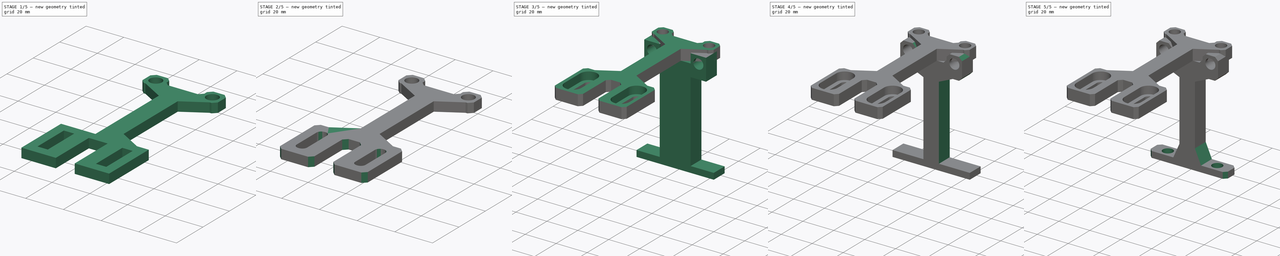
[diagram: build sequence overview — one tinted view per stage of 5, left to right]
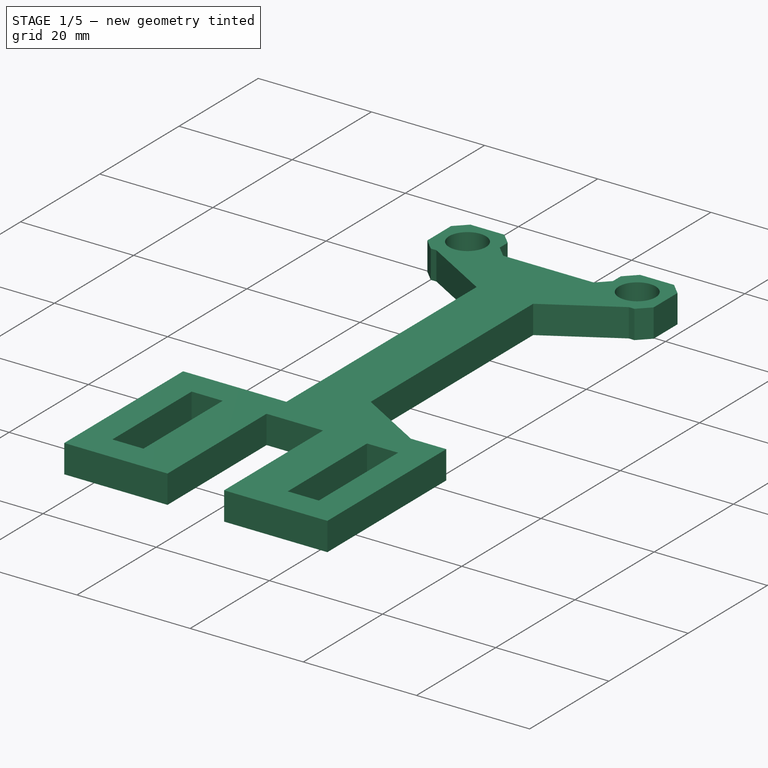
[diagram: stage 1 of 5 — iso view after this stage's code; geometry added in this stage tinted green]
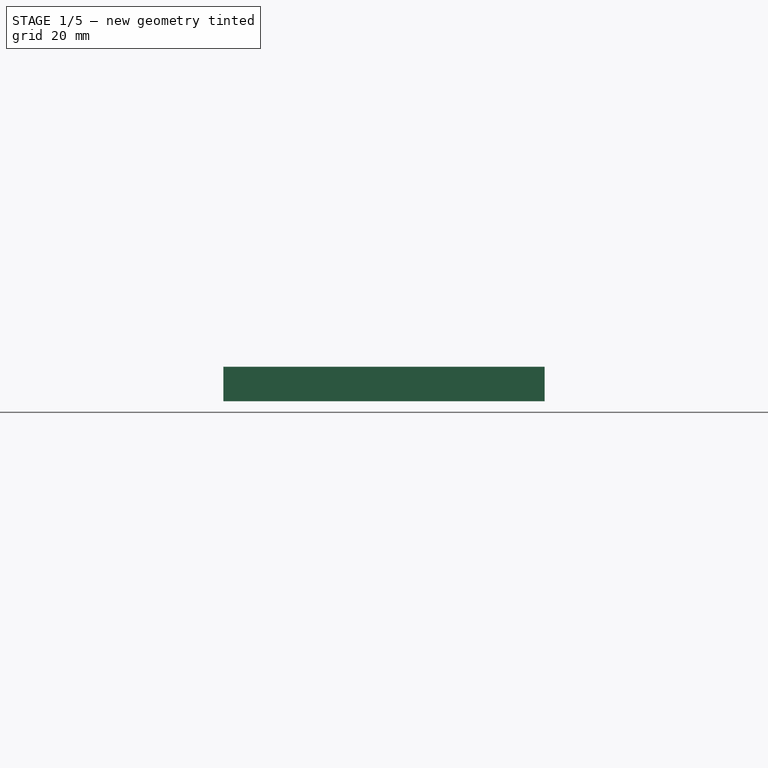
[diagram: stage 1 of 5 — front view after this stage's code; geometry added in this stage tinted green]
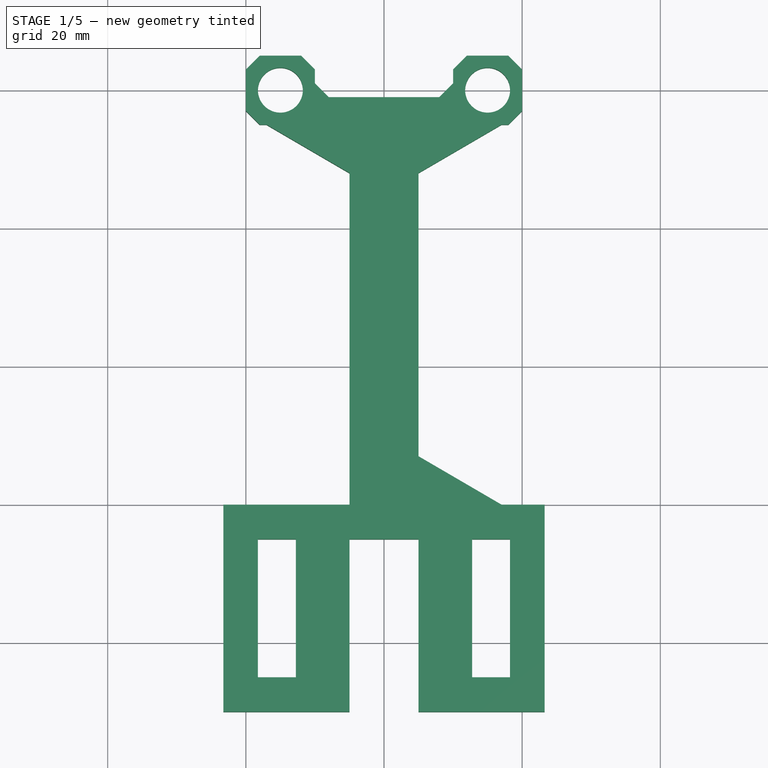
[diagram: stage 1 of 5 — top view after this stage's code; geometry added in this stage tinted green]
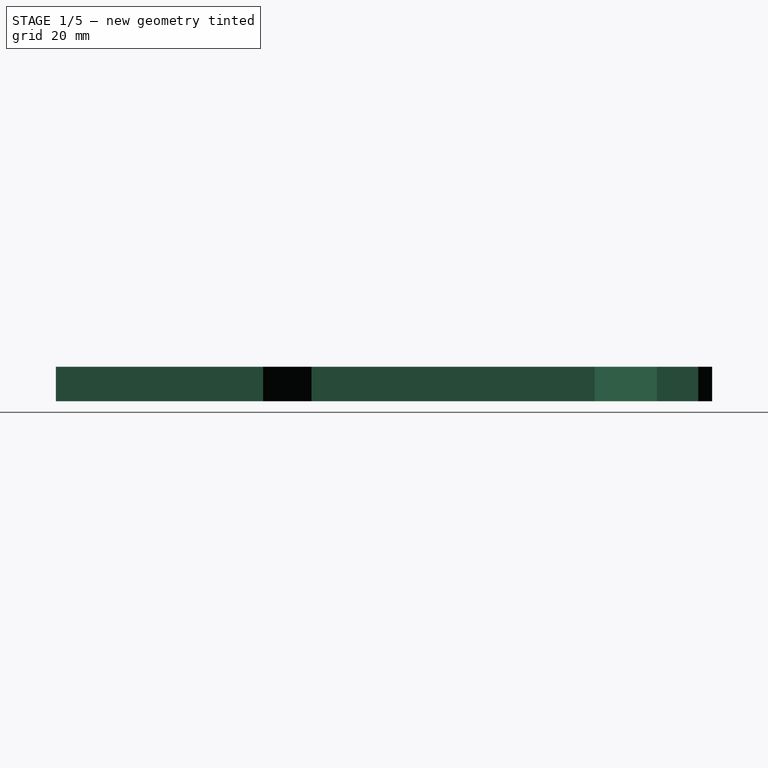
[diagram: stage 1 of 5 — right view after this stage's code; geometry added in this stage tinted green]
FCSTD DOCUMENT  (FreeCAD 1.0R39285 (Git))
Label: optics-holder
License: All rights reserved
objects: PartDesign::Chamfer×10, Sketcher::SketchObject×5, PartDesign::Pad×3, PartDesign::Pocket×3, PartDesign::Body×2, PartDesign::Fillet×2, App::Part×1
note: 66 computed .brp shape members not serialized (recipe doc carries the construction recipe); baked Part::Feature solids carry a one-line shape summary decoded from their .brp

FEATURE [PartDesign::Body] Body
  AllowCompound = false
  Group = -> [Sketch,Pad,Chamfer,Sketch001,Pocket,Chamfer001,Chamfer002,Chamfer003,Sketch002,Pocket001,Chamfer004]
  Origin = -> Origin
  Tip = -> Chamfer004
FEATURE [Sketcher::SketchObject] Sketch003
  ArcFitTolerance = 1e-06
  AttachmentSupport = -> [XY_Plane001]
  FullyConstrained = true
  MakeInternals = false
  MapMode = 5
  sketch-geometry (66):
    g0: LineSegment [constr] StartX=0 StartY=0 StartZ=0 EndX=15 EndY=0 EndZ=0
    g1: Circle CenterX=15 CenterY=0 CenterZ=0 NormalX=0 NormalY=0 NormalZ=1 AngleXU=0 Radius=3.25
    g2: Circle CenterX=-15 CenterY=0 CenterZ=0 NormalX=0 NormalY=0 NormalZ=1 AngleXU=0 Radius=3.25
    g3: LineSegment [constr] StartX=-20 StartY=-5 StartZ=0 EndX=20 EndY=-5 EndZ=0
    g4: LineSegment [constr] StartX=20 StartY=-5 StartZ=0 EndX=20 EndY=5 EndZ=0
    g5: LineSegment [constr] StartX=20 StartY=5 StartZ=0 EndX=-20 EndY=5 EndZ=0
    g6: LineSegment [constr] StartX=-20 StartY=5 StartZ=0 EndX=-20 EndY=-5 EndZ=0
    g7: GeomPoint [constr] X=0 Y=0 Z=0
    g8: LineSegment [constr] StartX=-10 StartY=-1 StartZ=0 EndX=10 EndY=-1 EndZ=0
    g9: LineSegment [constr] StartX=10 StartY=-1 StartZ=0 EndX=10 EndY=1 EndZ=0
    g10: LineSegment [constr] StartX=10 StartY=1 StartZ=0 EndX=-10 EndY=1 EndZ=0
    g11: LineSegment [constr] StartX=-10 StartY=1 StartZ=0 EndX=-10 EndY=-1 EndZ=0
    g12: GeomPoint [constr] X=0 Y=0 Z=0
    g13: LineSegment [constr] StartX=-5 StartY=-5 StartZ=0 EndX=5 EndY=-5 EndZ=0
    g14: LineSegment [constr] StartX=5 StartY=-5 StartZ=0 EndX=5 EndY=5 EndZ=0
    g15: LineSegment [constr] StartX=5 StartY=5 StartZ=0 EndX=-5 EndY=5 EndZ=0
    g16: LineSegment [constr] StartX=-5 StartY=5 StartZ=0 EndX=-5 EndY=-5 EndZ=0
    g17: GeomPoint [constr] X=0 Y=0 Z=0
    g18: LineSegment [constr] StartX=0 StartY=0 StartZ=0 EndX=6 EndY=0 EndZ=0
    g19: LineSegment [constr] StartX=0 StartY=0 StartZ=0 EndX=0 EndY=-65 EndZ=0
    g20: LineSegment [constr] StartX=0 StartY=-65 StartZ=0 EndX=-12.75 EndY=-65 EndZ=0
    g21: LineSegment [constr] StartX=0 StartY=-65 StartZ=0 EndX=12.75 EndY=-65 EndZ=0
    g22: LineSegment StartX=12.75 StartY=-65 StartZ=0 EndX=12.75 EndY=-85 EndZ=0
    g23: LineSegment StartX=12.75 StartY=-85 StartZ=0 EndX=18.25 EndY=-85 EndZ=0
    g24: LineSegment StartX=18.25 StartY=-85 StartZ=0 EndX=18.25 EndY=-65 EndZ=0
    g25: LineSegment StartX=18.25 StartY=-65 StartZ=0 EndX=12.75 EndY=-65 EndZ=0
    g26: LineSegment StartX=-12.75 StartY=-65 StartZ=0 EndX=-18.25 EndY=-65 EndZ=0
    g27: LineSegment StartX=-18.25 StartY=-65 StartZ=0 EndX=-18.25 EndY=-85 EndZ=0
    g28: LineSegment StartX=-18.25 StartY=-85 StartZ=0 EndX=-12.75 EndY=-85 EndZ=0
    g29: LineSegment StartX=-12.75 StartY=-85 StartZ=0 EndX=-12.75 EndY=-65 EndZ=0
    g30: LineSegment [constr] StartX=0 StartY=-65 StartZ=0 EndX=0 EndY=-75 EndZ=0
    g31: LineSegment [constr] StartX=-23.25 StartY=-90 StartZ=0 EndX=23.25 EndY=-90 EndZ=0
    g32: LineSegment [constr] StartX=23.25 StartY=-90 StartZ=0 EndX=23.25 EndY=-60 EndZ=0
    g33: LineSegment [constr] StartX=23.25 StartY=-60 StartZ=0 EndX=-23.25 EndY=-60 EndZ=0
    g34: LineSegment [constr] StartX=-23.25 StartY=-60 StartZ=0 EndX=-23.25 EndY=-90 EndZ=0
    g35: GeomPoint [constr] X=0 Y=-75 Z=0
    g36: LineSegment [constr] StartX=-5 StartY=-5 StartZ=0 EndX=-5 EndY=-60 EndZ=0
    g37: LineSegment [constr] StartX=-5 StartY=-60 StartZ=0 EndX=5 EndY=-60 EndZ=0
    g38: LineSegment [constr] StartX=5 StartY=-60 StartZ=0 EndX=5 EndY=-5 EndZ=0
    g39: LineSegment [constr] StartX=5 StartY=-5 StartZ=0 EndX=-5 EndY=-5 EndZ=0
    g40: LineSegment [constr] StartX=-5 StartY=-60 StartZ=0 EndX=-5 EndY=-90 EndZ=0
    g41: LineSegment [constr] StartX=-5 StartY=-90 StartZ=0 EndX=5 EndY=-90 EndZ=0
    g42: LineSegment [constr] StartX=5 StartY=-90 StartZ=0 EndX=5 EndY=-60 EndZ=0
    g43: LineSegment [constr] StartX=5 StartY=-60 StartZ=0 EndX=-5 EndY=-60 EndZ=0
    g44: LineSegment StartX=-10 StartY=-1 StartZ=0 EndX=-10 EndY=5 EndZ=0
    g45: LineSegment StartX=-10 StartY=5 StartZ=0 EndX=-20 EndY=5 EndZ=0
    g46: LineSegment StartX=-20 StartY=5 StartZ=0 EndX=-20 EndY=-5 EndZ=0
    g47: LineSegment StartX=-20 StartY=-5 StartZ=0 EndX=-5 EndY=-5 EndZ=0
    g48: LineSegment StartX=-5 StartY=-5 StartZ=0 EndX=-5 EndY=-60 EndZ=0
    g49: LineSegment StartX=-5 StartY=-60 StartZ=0 EndX=-23.25 EndY=-60 EndZ=0
    g50: LineSegment StartX=-23.25 StartY=-60 StartZ=0 EndX=-23.25 EndY=-90 EndZ=0
    g51: LineSegment StartX=-23.25 StartY=-90 StartZ=0 EndX=-5 EndY=-90 EndZ=0
    g52: LineSegment StartX=-5 StartY=-90 StartZ=0 EndX=-5 EndY=-65 EndZ=0
    g53: LineSegment StartX=-5 StartY=-65 StartZ=0 EndX=5 EndY=-65 EndZ=0
    g54: LineSegment StartX=5 StartY=-65 StartZ=0 EndX=5 EndY=-90 EndZ=0
    g55: LineSegment StartX=5 StartY=-90 StartZ=0 EndX=23.25 EndY=-90 EndZ=0
    g56: LineSegment StartX=23.25 StartY=-90 StartZ=0 EndX=23.25 EndY=-60 EndZ=0
    g57: LineSegment StartX=23.25 StartY=-60 StartZ=0 EndX=5 EndY=-60 EndZ=0
    g58: LineSegment StartX=5 StartY=-60 StartZ=0 EndX=5 EndY=-5 EndZ=0
    g59: LineSegment StartX=5 StartY=-5 StartZ=0 EndX=20 EndY=-5 EndZ=0
    g60: LineSegment StartX=20 StartY=-5 StartZ=0 EndX=20 EndY=5 EndZ=0
    g61: LineSegment StartX=20 StartY=5 StartZ=0 EndX=10 EndY=5 EndZ=0
    g62: LineSegment StartX=10 StartY=5 StartZ=0 EndX=10 EndY=-1 EndZ=0
    g63: LineSegment StartX=10 StartY=-1 StartZ=0 EndX=5 EndY=-1 EndZ=0
    g64: LineSegment StartX=-10 StartY=-1 StartZ=0 EndX=-5 EndY=-1 EndZ=0
    g65: LineSegment StartX=-5 StartY=-1 StartZ=0 EndX=5 EndY=-1 EndZ=0
  constraints (165):
    c: Distance(g0) = 15
    c: Coincident(g0,g-1)
    c: PointOnObject(g0,g-1)
    c: Diameter(g1) = 6.5
    c: Coincident(g1,g0)
    c: Diameter(g2) = 6.5
    c: Symmetric(g0,g2,g-2)
    c: Coincident(g3,g4)
    c: Coincident(g4,g5)
    c: Coincident(g5,g6)
    c: Coincident(g6,g3)
    c: Horizontal(g3)
    c: Horizontal(g5)
    c: Vertical(g4)
    c: Vertical(g6)
    c: Symmetric(g5,g3,g7)
    c: Distance(g4,g6) = 40
    c: Distance(g3,g5) = 10
    c: Coincident(g7,g0)
    c: Coincident(g8,g9)
    c: Coincident(g9,g10)
    c: Coincident(g10,g11)
    c: Coincident(g11,g8)
    c: Horizontal(g8)
    c: Horizontal(g10)
    c: Vertical(g9)
    c: Vertical(g11)
    c: Symmetric(g10,g8,g12)
    c: Distance(g9,g11) = 20
    c: Distance(g8,g10) = 2
    c: Coincident(g12,g0)
    c: Coincident(g13,g14)
    c: Coincident(g14,g15)
    c: Coincident(g15,g16)
    c: Coincident(g16,g13)
    c: Horizontal(g13)
    c: Horizontal(g15)
    c: Vertical(g14)
    c: Vertical(g16)
    c: Symmetric(g15,g13,g17)
    c: Distance(g14,g16) = 10
    c: Coincident(g17,g0)
    c: PointOnObject(g14,g5)
    c: Distance(g18) = 6
    c: Coincident(g18,g0)
    c: PointOnObject(g18,g0)
    c: Distance(g19) = 65
    c: Coincident(g19,g0)
    c: PointOnObject(g19,g-2)
    c: Distance(g20) = 12.75
    c: Coincident(g20,g19)
    c: Horizontal(g20)
    c: Distance(g21) = 12.75
    c: Coincident(g21,g19)
    c: Horizontal(g21)
    c: Coincident(g22,g23)
    c: Coincident(g23,g24)
    c: Coincident(g24,g25)
    c: Coincident(g25,g22)
    c: Vertical(g22)
    c: Vertical(g24)
    c: Horizontal(g23)
    c: Horizontal(g25)
    c: Distance(g22,g24) = 5.5
    c: Distance(g23,g25) = 20
    c: Coincident(g22,g21)
    c: Coincident(g26,g27)
    c: Coincident(g27,g28)
    c: Coincident(g28,g29)
    c: Coincident(g29,g26)
    c: Horizontal(g26)
    c: Horizontal(g28)
    c: Vertical(g27)
    c: Vertical(g29)
    c: Distance(g27,g29) = 5.5
    c: Distance(g26,g28) = 20
    c: Coincident(g26,g20)
    c: Distance(g30) = 10
    c: Coincident(g30,g19)
    c: PointOnObject(g30,g-2)
    c: Coincident(g31,g32)
    c: Coincident(g32,g33)
    c: Coincident(g33,g34)
    c: Coincident(g34,g31)
    c: Horizontal(g31)
    c: Horizontal(g33)
    c: Vertical(g32)
    c: Vertical(g34)
    c: Symmetric(g33,g31,g35)
    c: Distance(g32,g34) = 46.5
    c: Distance(g31,g33) = 30
    c: Coincident(g35,g30)
    c: Coincident(g36,g37)
    c: Coincident(g37,g38)
    c: Coincident(g38,g39)
    c: Coincident(g39,g36)
    c: Vertical(g36)
    c: Vertical(g38)
    c: Horizontal(g37)
    c: Horizontal(g39)
    c: Distance(g36,g38) = 10
    c: Coincident(g36,g13)
    c: PointOnObject(g37,g33)
    c: Coincident(g40,g41)
    c: Coincident(g41,g42)
    c: Coincident(g42,g43)
    c: Coincident(g43,g40)
    c: Vertical(g40)
    c: Vertical(g42)
    c: Horizontal(g41)
    c: Horizontal(g43)
    c: Distance(g40,g42) = 10
    c: Coincident(g40,g36)
    c: PointOnObject(g41,g31)
    c: Distance(g44) = 6
    c: Coincident(g44,g8)
    c: Vertical(g44)
    c: Coincident(g45,g44)
    c: Coincident(g45,g5)
    c: Coincident(g46,g5)
    c: Coincident(g46,g3)
    c: Coincident(g47,g3)
    c: Coincident(g47,g13)
    c: Coincident(g48,g13)
    c: Coincident(g48,g36)
    c: Coincident(g49,g36)
    c: Coincident(g49,g33)
    c: Coincident(g50,g33)
    c: Coincident(g50,g31)
    c: Coincident(g51,g31)
    c: Coincident(g51,g40)
    c: Distance(g52) = 25
    c: Coincident(g52,g40)
    c: PointOnObject(g52,g40)
    c: Distance(g53) = 10
    c: Coincident(g53,g52)
    c: PointOnObject(g53,g21)
    c: Coincident(g54,g53)
    c: Coincident(g54,g41)
    c: Coincident(g55,g41)
    c: Coincident(g55,g31)
    c: Coincident(g56,g31)
    c: Coincident(g56,g32)
    c: Coincident(g57,g32)
    c: Coincident(g57,g37)
    c: Coincident(g58,g37)
    c: Coincident(g58,g13)
    c: Coincident(g59,g13)
    c: Coincident(g59,g3)
    c: Coincident(g60,g3)
    c: Coincident(g60,g4)
    c: Distance(g61) = 10
    c: Coincident(g61,g4)
    c: PointOnObject(g61,g5)
    c: PointOnObject(g62,g5)
    c: Coincident(g62,g8)
    c: Vertical(g62)
    c: Distance(g63) = 5
    c: Coincident(g63,g8)
    c: PointOnObject(g63,g8)
    c: Distance(g64) = 5
    c: Coincident(g64,g8)
    c: PointOnObject(g64,g8)
    c: Coincident(g65,g64)
    c: Coincident(g65,g63)
FEATURE [PartDesign::Pad] Pad001
  Direction = (0,0,1)
  Length = 5
  Length2 = 10
  Profile = -> Sketch003
  ReferenceAxis = -> Sketch003 [N_Axis]
  Refine = true
  Suppressed = false
  Type = 0
FEATURE [PartDesign::Chamfer] Chamfer005
  Angle = 45
  Base = -> Pad001 [Edge2,Edge53,Edge1,Edge56,Edge5,Edge8,Edge50,Edge47]
  BaseFeature = -> Pad001
  ChamferType = 0
  FlipDirection = false
  Refine = true
  Size = 2
  Size2 = 1
  SupportTransform = false
  Suppressed = false
  UseAllEdges = false
FEATURE [PartDesign::Chamfer] Chamfer006
  Angle = 45
  Base = -> Chamfer005 [Edge90,Edge97]
  BaseFeature = -> Chamfer005
  ChamferType = 1
  FlipDirection = false
  Refine = true
  Size = 12
  Size2 = 7
  SupportTransform = false
  Suppressed = false
  UseAllEdges = false
FEATURE [PartDesign::Chamfer] Chamfer007
  Angle = 45
  Base = -> Chamfer006 [Edge84]
  BaseFeature = -> Chamfer006
  ChamferType = 1
  FlipDirection = false
  Refine = true
  Size = 12
  Size2 = 7
  SupportTransform = false
  Suppressed = false
  UseAllEdges = false
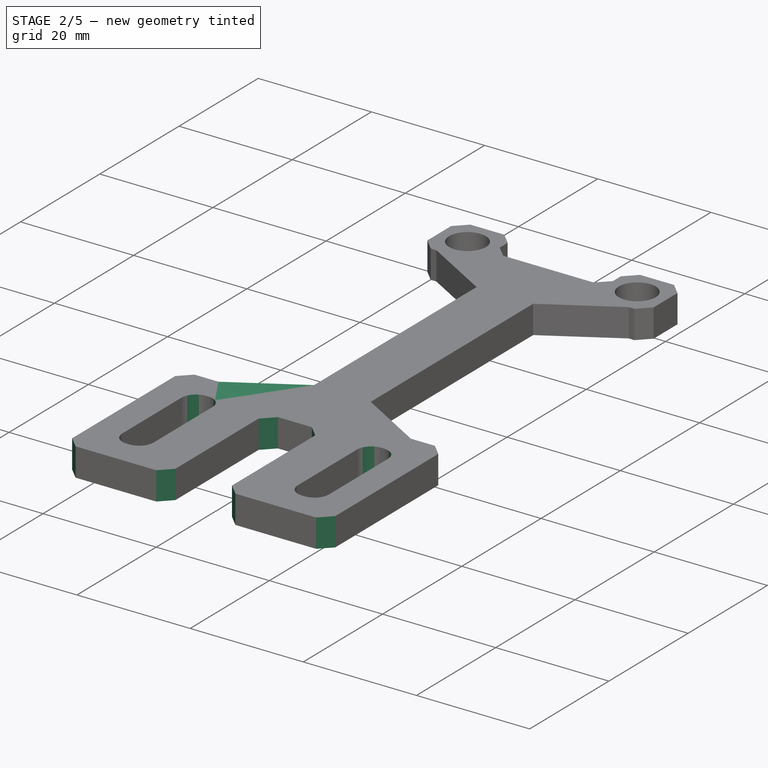
[diagram: stage 2 of 5 — iso view after this stage's code; geometry added in this stage tinted green]
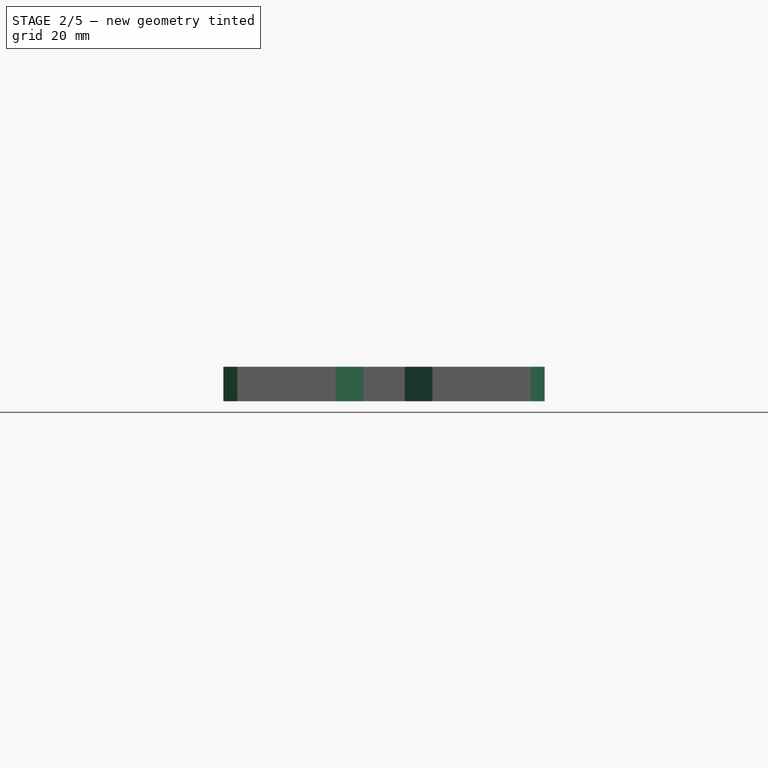
[diagram: stage 2 of 5 — front view after this stage's code; geometry added in this stage tinted green]
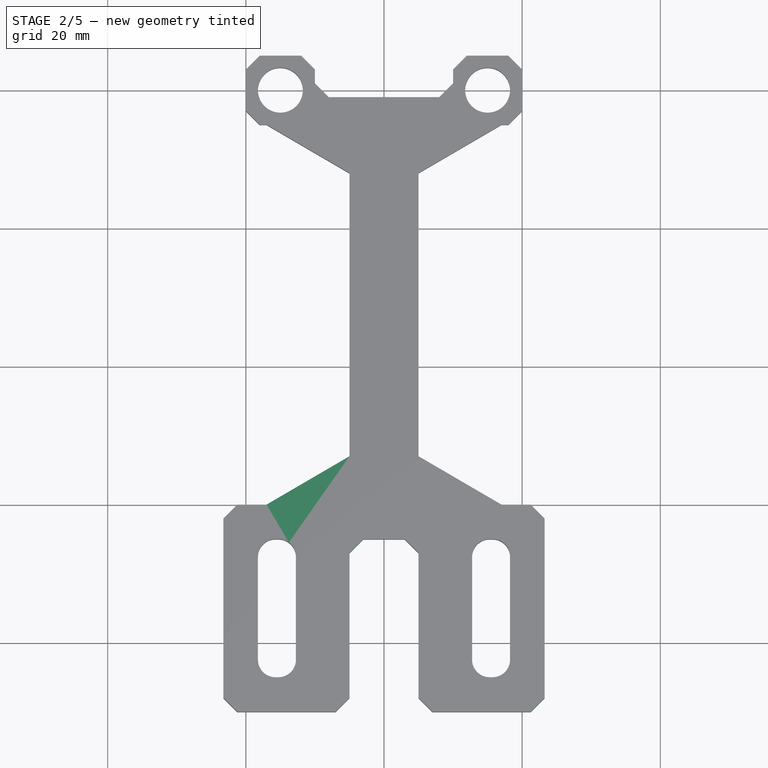
[diagram: stage 2 of 5 — top view after this stage's code; geometry added in this stage tinted green]
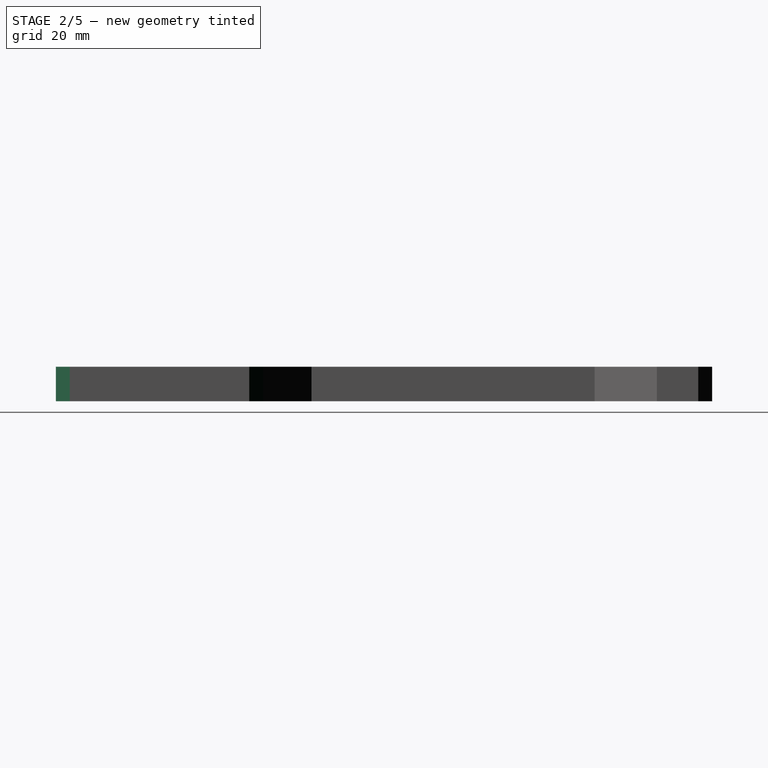
[diagram: stage 2 of 5 — right view after this stage's code; geometry added in this stage tinted green]
FEATURE [PartDesign::Chamfer] Chamfer008
  Angle = 45
  Base = -> Chamfer007 [Edge75]
  BaseFeature = -> Chamfer007
  ChamferType = 1
  FlipDirection = false
  Refine = true
  Size = 12
  Size2 = 7
  SupportTransform = false
  Suppressed = false
  UseAllEdges = false
FEATURE [PartDesign::Chamfer] Chamfer009
  Angle = 45
  Base = -> Chamfer008 [Edge44,Edge60,Edge56,Edge52,Edge48,Edge64,Edge68,Edge72]
  BaseFeature = -> Chamfer008
  ChamferType = 0
  FlipDirection = false
  Refine = true
  Size = 2
  Size2 = 1
  SupportTransform = false
  Suppressed = false
  UseAllEdges = false
FEATURE [PartDesign::Fillet] Fillet
  Base = -> Chamfer009 [Edge132,Edge131,Edge136,Edge134,Edge140,Edge139,Edge144,Edge142]
  BaseFeature = -> Chamfer009
  Radius = 2.55
  Refine = true
  SupportTransform = false
  Suppressed = false
  UseAllEdges = false
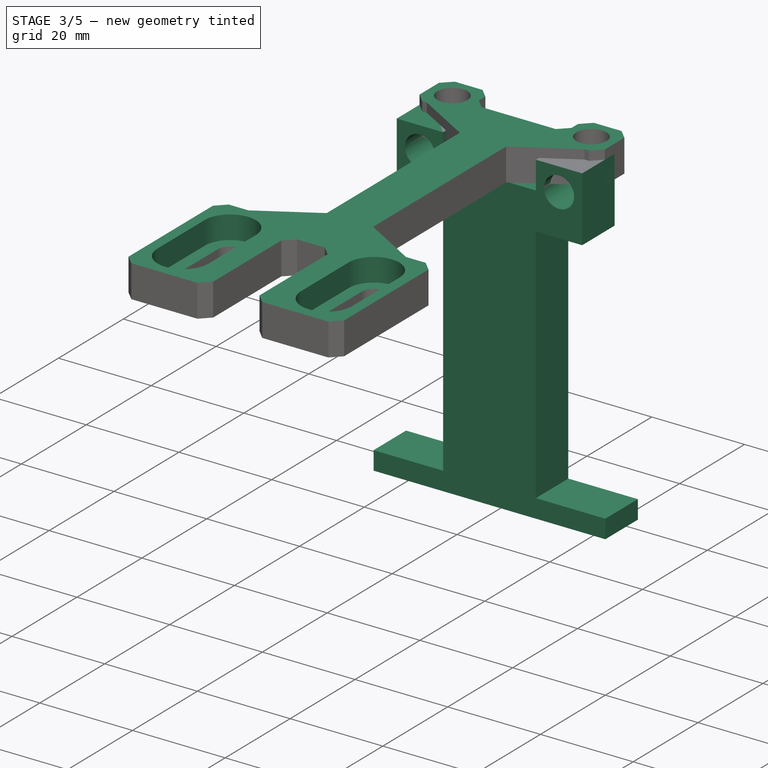
[diagram: stage 3 of 5 — iso view after this stage's code; geometry added in this stage tinted green]
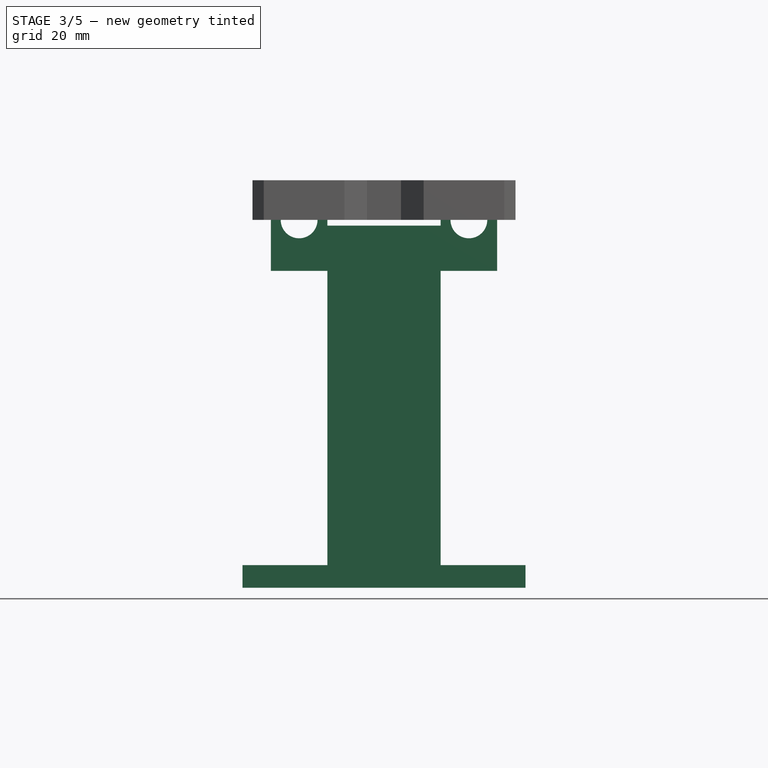
[diagram: stage 3 of 5 — front view after this stage's code; geometry added in this stage tinted green]
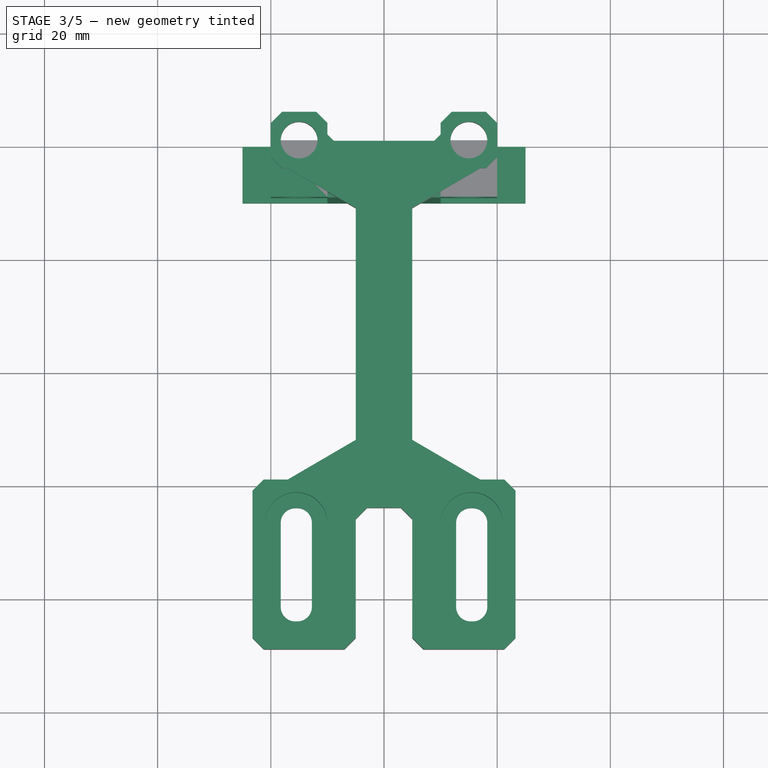
[diagram: stage 3 of 5 — top view after this stage's code; geometry added in this stage tinted green]
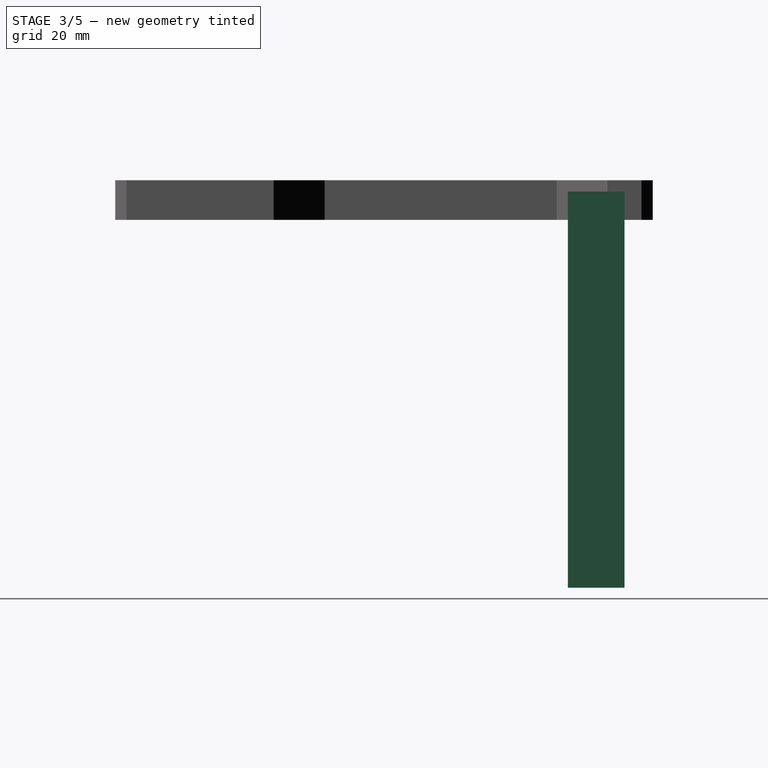
[diagram: stage 3 of 5 — right view after this stage's code; geometry added in this stage tinted green]
FEATURE [Sketcher::SketchObject] Sketch
  ArcFitTolerance = 1e-06
  AttachmentSupport = -> [XZ_Plane]
  FullyConstrained = true
  MakeInternals = false
  MapMode = 5
  Placement = pos=(0,0,0) rot=(1,0,0;1.5708rad)
  sketch-geometry (46):
    g0: LineSegment [constr] StartX=0 StartY=0 StartZ=0 EndX=15 EndY=0 EndZ=0
    g1: Circle CenterX=15 CenterY=0 CenterZ=0 NormalX=0 NormalY=0 NormalZ=1 AngleXU=0 Radius=3.25
    g2: Circle CenterX=-15 CenterY=0 CenterZ=0 NormalX=0 NormalY=0 NormalZ=1 AngleXU=0 Radius=3.25
    g3: LineSegment [constr] StartX=-20 StartY=-5 StartZ=0 EndX=-10 EndY=-5 EndZ=0
    g4: LineSegment [constr] StartX=-10 StartY=-5 StartZ=0 EndX=-10 EndY=5 EndZ=0
    g5: LineSegment [constr] StartX=-10 StartY=5 StartZ=0 EndX=-20 EndY=5 EndZ=0
    g6: LineSegment [constr] StartX=-20 StartY=5 StartZ=0 EndX=-20 EndY=-5 EndZ=0
    g7: GeomPoint [constr] X=-15 Y=0 Z=0
    g8: LineSegment [constr] StartX=10 StartY=-5 StartZ=0 EndX=20 EndY=-5 EndZ=0
    g9: LineSegment [constr] StartX=20 StartY=-5 StartZ=0 EndX=20 EndY=5 EndZ=0
    g10: LineSegment [constr] StartX=20 StartY=5 StartZ=0 EndX=10 EndY=5 EndZ=0
    g11: LineSegment [constr] StartX=10 StartY=5 StartZ=0 EndX=10 EndY=-5 EndZ=0
    g12: GeomPoint [constr] X=15 Y=0 Z=0
    g13: LineSegment [constr] StartX=-10 StartY=-5 StartZ=0 EndX=10 EndY=-5 EndZ=0
    g14: LineSegment [constr] StartX=10 StartY=-5 StartZ=0 EndX=10 EndY=-1 EndZ=0
    g15: LineSegment [constr] StartX=10 StartY=-1 StartZ=0 EndX=-10 EndY=-1 EndZ=0
    g16: LineSegment [constr] StartX=-10 StartY=-1 StartZ=0 EndX=-10 EndY=-5 EndZ=0
    g17: LineSegment [constr] StartX=-20 StartY=-5 StartZ=0 EndX=-20 EndY=-9 EndZ=0
    g18: LineSegment [constr] StartX=-20 StartY=-9 StartZ=0 EndX=20 EndY=-9 EndZ=0
    g19: LineSegment [constr] StartX=20 StartY=-9 StartZ=0 EndX=20 EndY=-5 EndZ=0
    g20: LineSegment [constr] StartX=20 StartY=-5 StartZ=0 EndX=-20 EndY=-5 EndZ=0
    g21: LineSegment [constr] StartX=-10 StartY=-5 StartZ=0 EndX=-10 EndY=-65 EndZ=0
    g22: LineSegment [constr] StartX=-10 StartY=-65 StartZ=0 EndX=10 EndY=-65 EndZ=0
    g23: LineSegment [constr] StartX=10 StartY=-65 StartZ=0 EndX=10 EndY=-5 EndZ=0
    g24: LineSegment [constr] StartX=10 StartY=-5 StartZ=0 EndX=-10 EndY=-5 EndZ=0
    g25: LineSegment [constr] StartX=10 StartY=-65 StartZ=0 EndX=25 EndY=-65 EndZ=0
    g26: LineSegment [constr] StartX=25 StartY=-65 StartZ=0 EndX=25 EndY=-61 EndZ=0
    g27: LineSegment [constr] StartX=25 StartY=-61 StartZ=0 EndX=-25 EndY=-61 EndZ=0
    g28: LineSegment [constr] StartX=-25 StartY=-61 StartZ=0 EndX=-25 EndY=-65 EndZ=0
    g29: LineSegment [constr] StartX=-25 StartY=-65 StartZ=0 EndX=25 EndY=-65 EndZ=0
    g30: LineSegment StartX=-25 StartY=-65 StartZ=0 EndX=-25 EndY=-61 EndZ=0
    g31: LineSegment StartX=-25 StartY=-61 StartZ=0 EndX=-10 EndY=-61 EndZ=0
    g32: LineSegment StartX=-25 StartY=-65 StartZ=0 EndX=25 EndY=-65 EndZ=0
    g33: LineSegment StartX=25 StartY=-65 StartZ=0 EndX=25 EndY=-61 EndZ=0
    g34: LineSegment StartX=25 StartY=-61 StartZ=0 EndX=10 EndY=-61 EndZ=0
    g35: LineSegment StartX=10 StartY=-61 StartZ=0 EndX=10 EndY=-9 EndZ=0
    g36: LineSegment StartX=10 StartY=-9 StartZ=0 EndX=20 EndY=-9 EndZ=0
    g37: LineSegment StartX=20 StartY=-9 StartZ=0 EndX=20 EndY=5 EndZ=0
    g38: LineSegment StartX=-20 StartY=5 StartZ=0 EndX=-20 EndY=-9 EndZ=0
    g39: LineSegment StartX=-20 StartY=-9 StartZ=0 EndX=-10 EndY=-9 EndZ=0
    g40: LineSegment StartX=-10 StartY=-9 StartZ=0 EndX=-10 EndY=-61 EndZ=0
    g41: LineSegment StartX=-20 StartY=5 StartZ=0 EndX=-10 EndY=5 EndZ=0
    g42: LineSegment StartX=-10 StartY=5 StartZ=0 EndX=-10 EndY=-1 EndZ=0
    g43: LineSegment StartX=-10 StartY=-1 StartZ=0 EndX=10 EndY=-1 EndZ=0
    g44: LineSegment StartX=10 StartY=-1 StartZ=0 EndX=10 EndY=5 EndZ=0
    g45: LineSegment StartX=10 StartY=5 StartZ=0 EndX=20 EndY=5 EndZ=0
  constraints (114):
    c: Distance(g0) = 15
    c: Coincident(g0,g-1)
    c: PointOnObject(g0,g-1)
    c: Diameter(g1) = 6.5
    c: Coincident(g1,g0)
    c: Equal(g1,g2)
    c: Symmetric(g0,g2,g-2)
    c: Coincident(g3,g4)
    c: Coincident(g4,g5)
    c: Coincident(g5,g6)
    c: Coincident(g6,g3)
    c: Horizontal(g3)
    c: Horizontal(g5)
    c: Vertical(g4)
    c: Vertical(g6)
    c: Symmetric(g5,g3,g7)
    c: Distance(g4,g6) = 10
    c: Distance(g3,g5) = 10
    c: Coincident(g7,g2)
    c: Coincident(g8,g9)
    c: Coincident(g9,g10)
    c: Coincident(g10,g11)
    c: Coincident(g11,g8)
    c: Horizontal(g8)
    c: Horizontal(g10)
    c: Vertical(g9)
    c: Vertical(g11)
    c: Symmetric(g10,g8,g12)
    c: Distance(g9,g11) = 10
    c: Distance(g8,g10) = 10
    c: Coincident(g12,g0)
    c: Coincident(g13,g14)
    c: Coincident(g14,g15)
    c: Coincident(g15,g16)
    c: Coincident(g16,g13)
    c: Horizontal(g13)
    c: Horizontal(g15)
    c: Vertical(g14)
    c: Vertical(g16)
    c: Distance(g13,g15) = 4
    c: Coincident(g13,g3)
    c: PointOnObject(g14,g11)
    c: Coincident(g17,g18)
    c: Coincident(g18,g19)
    c: Coincident(g19,g20)
    c: Coincident(g20,g17)
    c: Vertical(g17)
    c: Vertical(g19)
    c: Horizontal(g18)
    c: Horizontal(g20)
    c: Distance(g17,g19) = 40
    c: Distance(g18,g20) = 4
    c: Coincident(g17,g3)
    c: Coincident(g21,g22)
    c: Coincident(g22,g23)
    c: Coincident(g23,g24)
    c: Coincident(g24,g21)
    c: Vertical(g21)
    c: Vertical(g23)
    c: Horizontal(g22)
    c: Horizontal(g24)
    c: Distance(g21,g23) = 20
    c: Distance(g22,g24) = 60
    c: Coincident(g21,g3)
    c: Distance(g25) = 15
    c: Coincident(g25,g22)
    c: Horizontal(g25)
    c: Coincident(g26,g27)
    c: Coincident(g27,g28)
    c: Coincident(g28,g29)
    c: Coincident(g29,g26)
    c: Vertical(g26)
    c: Vertical(g28)
    c: Horizontal(g27)
    c: Horizontal(g29)
    c: Distance(g26,g28) = 50
    c: Distance(g27,g29) = 4
    c: Coincident(g26,g25)
    c: Coincident(g30,g28)
    c: Coincident(g30,g27)
    c: Distance(g31) = 15
    c: Coincident(g31,g27)
    c: PointOnObject(g31,g27)
    c: Coincident(g32,g28)
    c: Coincident(g32,g25)
    c: Coincident(g33,g25)
    c: Coincident(g33,g26)
    c: Distance(g34) = 15
    c: Coincident(g34,g26)
    c: PointOnObject(g34,g27)
    c: Distance(g35) = 52
    c: Coincident(g35,g34)
    c: PointOnObject(g35,g23)
    c: Coincident(g36,g35)
    c: Coincident(g36,g18)
    c: Coincident(g37,g18)
    c: Coincident(g37,g9)
    c: Coincident(g38,g5)
    c: Coincident(g38,g17)
    c: Distance(g39) = 10
    c: Coincident(g39,g17)
    c: PointOnObject(g39,g18)
    c: Coincident(g40,g39)
    c: Coincident(g40,g31)
    c: Coincident(g41,g5)
    c: Coincident(g41,g4)
    c: Coincident(g42,g4)
    c: Coincident(g42,g15)
    c: Coincident(g43,g15)
    c: Coincident(g43,g14)
    c: Coincident(g44,g14)
    c: Coincident(g44,g10)
    c: Coincident(g45,g10)
    c: Coincident(g45,g9)
FEATURE [PartDesign::Pad] Pad
  Direction = (0,-1,2e-16)
  Length = 10
  Length2 = 10
  Placement = pos=(0,0,0) rot=(1,0,0;1.5708rad)
  Profile = -> Sketch
  ReferenceAxis = -> Sketch [N_Axis]
  Refine = true
  Suppressed = false
  Type = 0
FEATURE [PartDesign::Pad] Pad002
  BaseFeature = -> Fillet
  Direction = (0,0,1)
  Length = 2
  Length2 = 10
  Profile = -> Fillet [Face60]
  Refine = true
  Suppressed = false
  Type = 0
FEATURE [Sketcher::SketchObject] Sketch004
  ArcFitTolerance = 1e-06
  AttachmentSupport = -> [Pad002]
  FullyConstrained = true
  MakeInternals = false
  MapMode = 5
  Placement = pos=(0,0,7) rot=(0,0,1;0rad)
  sketch-geometry (13):
    g0: LineSegment [constr] StartX=0 StartY=0 StartZ=0 EndX=0 EndY=-75 EndZ=0
    g1: LineSegment [constr] StartX=0 StartY=-75 StartZ=0 EndX=-15.5 EndY=-75 EndZ=0
    g2: LineSegment [constr] StartX=0 StartY=-75 StartZ=0 EndX=15.5 EndY=-75 EndZ=0
    g3: LineSegment StartX=-21 StartY=-87.75 StartZ=0 EndX=-10 EndY=-87.75 EndZ=0
    g4: LineSegment StartX=-10 StartY=-87.75 StartZ=0 EndX=-10 EndY=-62.25 EndZ=0
    g5: LineSegment StartX=-10 StartY=-62.25 StartZ=0 EndX=-21 EndY=-62.25 EndZ=0
    g6: LineSegment StartX=-21 StartY=-62.25 StartZ=0 EndX=-21 EndY=-87.75 EndZ=0
    g7: GeomPoint [constr] X=-15.5 Y=-75 Z=0
    g8: LineSegment StartX=10 StartY=-87.75 StartZ=0 EndX=21 EndY=-87.75 EndZ=0
    g9: LineSegment StartX=21 StartY=-87.75 StartZ=0 EndX=21 EndY=-62.25 EndZ=0
    g10: LineSegment StartX=21 StartY=-62.25 StartZ=0 EndX=10 EndY=-62.25 EndZ=0
    g11: LineSegment StartX=10 StartY=-62.25 StartZ=0 EndX=10 EndY=-87.75 EndZ=0
    g12: GeomPoint [constr] X=15.5 Y=-75 Z=0
  constraints (33):
    c: Distance(g0) = 75
    c: Coincident(g0,g-1)
    c: Vertical(g0)
    c: Distance(g1) = 15.5
    c: Coincident(g1,g0)
    c: Horizontal(g1)
    c: Distance(g2) = 15.5
    c: Coincident(g2,g0)
    c: Horizontal(g2)
    c: Coincident(g3,g4)
    c: Coincident(g4,g5)
    c: Coincident(g5,g6)
    c: Coincident(g6,g3)
    c: Horizontal(g3)
    c: Horizontal(g5)
    c: Vertical(g4)
    c: Vertical(g6)
    c: Symmetric(g5,g3,g7)
    c: Distance(g4,g6) = 11
    c: Distance(g3,g5) = 25.5
    c: Coincident(g7,g1)
    c: Coincident(g8,g9)
    c: Coincident(g9,g10)
    c: Coincident(g10,g11)
    c: Coincident(g11,g8)
    c: Horizontal(g8)
    c: Horizontal(g10)
    c: Vertical(g9)
    c: Vertical(g11)
    c: Symmetric(g10,g8,g12)
    c: Distance(g9,g11) = 11
    c: Distance(g8,g10) = 25.5
    c: Coincident(g12,g2)
FEATURE [PartDesign::Pocket] Pocket002
  BaseFeature = -> Pad002
  Direction = (0,0,-1)
  Length = 5
  Length2 = 5
  Profile = -> Sketch004
  ReferenceAxis = -> Sketch004 [N_Axis]
  Refine = true
  Suppressed = false
  Type = 0
FEATURE [PartDesign::Fillet] Fillet001
  Base = -> Pocket002 [Edge197,Edge196,Edge198,Edge195,Edge192,Edge194,Edge193,Edge191]
  BaseFeature = -> Pocket002
  Radius = 5.49
  Refine = true
  SupportTransform = false
  Suppressed = false
  UseAllEdges = false
FEATURE [PartDesign::Body] Body001
  AllowCompound = false
  Group = -> [Sketch003,Pad001,Chamfer005,Chamfer006,Chamfer007,Chamfer008,Chamfer009,Fillet,Pad002,Sketch004,Pocket002,Fillet001]
  Origin = -> Origin002
  Tip = -> Fillet001
FEATURE [App::Part] Part
  Group = -> [Body001]
  Origin = -> Origin001
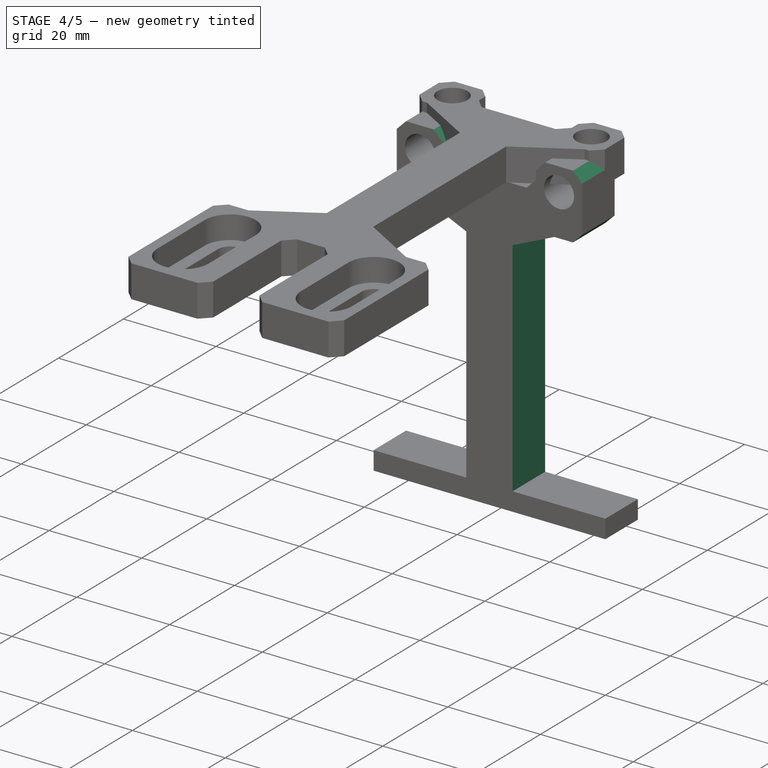
[diagram: stage 4 of 5 — iso view after this stage's code; geometry added in this stage tinted green]
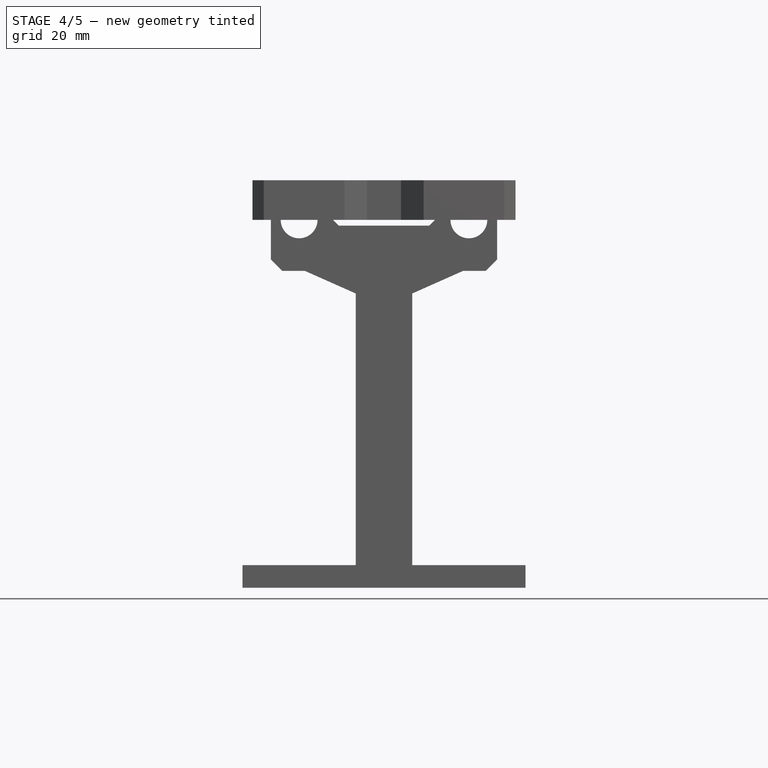
[diagram: stage 4 of 5 — front view after this stage's code; geometry added in this stage tinted green]
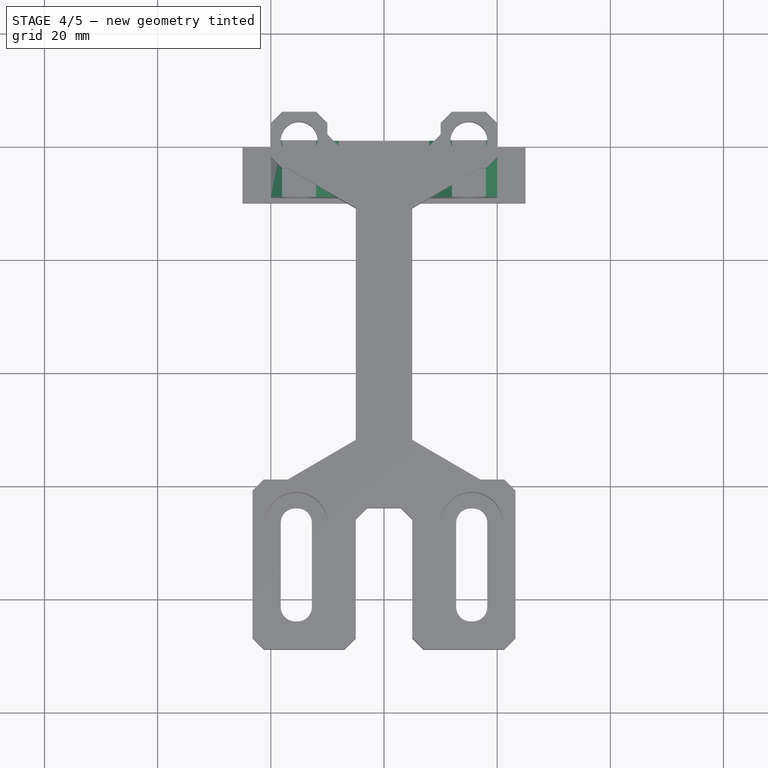
[diagram: stage 4 of 5 — top view after this stage's code; geometry added in this stage tinted green]
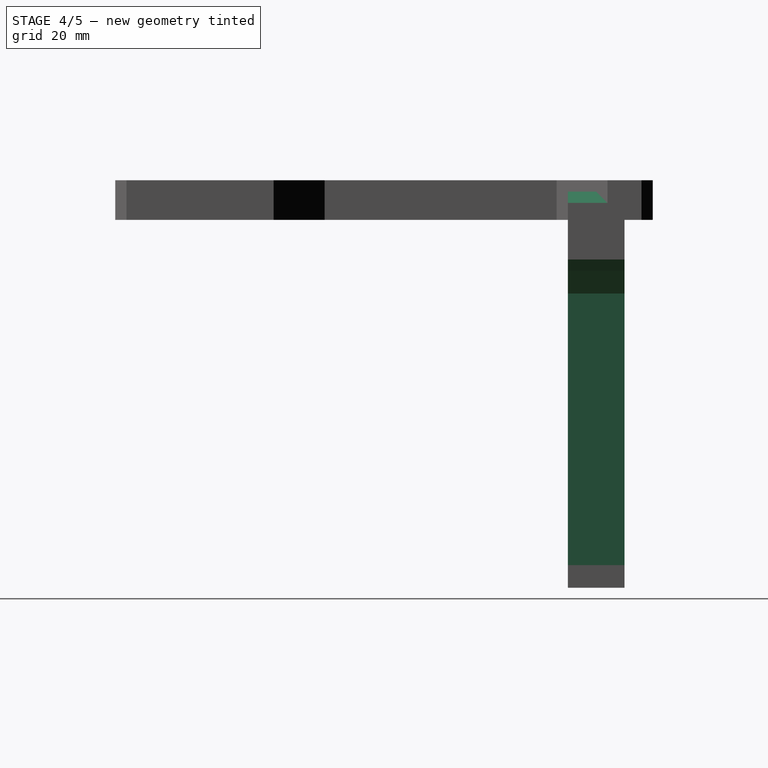
[diagram: stage 4 of 5 — right view after this stage's code; geometry added in this stage tinted green]
FEATURE [PartDesign::Chamfer] Chamfer
  Angle = 45
  Base = -> Pad [Edge11,Edge2,Edge1,Edge14,Edge17,Edge44,Edge5,Edge8]
  BaseFeature = -> Pad
  ChamferType = 0
  FlipDirection = false
  Placement = pos=(0,0,0) rot=(1,0,0;1.5708rad)
  Refine = true
  Size = 2
  Size2 = 1
  SupportTransform = false
  Suppressed = false
  UseAllEdges = false
FEATURE [Sketcher::SketchObject] Sketch001
  ArcFitTolerance = 1e-06
  AttachmentSupport = -> [Chamfer]
  FullyConstrained = true
  MakeInternals = false
  MapMode = 5
  Placement = pos=(0,-6.4e-15,0) rot=(-1,0,0;1.5708rad)
  sketch-geometry (19):
    g0: LineSegment [constr] StartX=0 StartY=0 StartZ=0 EndX=0 EndY=35 EndZ=0
    g1: LineSegment [constr] StartX=-5 StartY=9 StartZ=0 EndX=5 EndY=9 EndZ=0
    g2: LineSegment [constr] StartX=5 StartY=9 StartZ=0 EndX=5 EndY=61 EndZ=0
    g3: LineSegment [constr] StartX=5 StartY=61 StartZ=0 EndX=-5 EndY=61 EndZ=0
    g4: LineSegment [constr] StartX=-5 StartY=61 StartZ=0 EndX=-5 EndY=9 EndZ=0
    g5: GeomPoint [constr] X=0 Y=35 Z=0
    g6: LineSegment [constr] StartX=-10 StartY=9 StartZ=0 EndX=10 EndY=9 EndZ=0
    g7: LineSegment [constr] StartX=10 StartY=9 StartZ=0 EndX=10 EndY=61 EndZ=0
    g8: LineSegment [constr] StartX=10 StartY=61 StartZ=0 EndX=-10 EndY=61 EndZ=0
    g9: LineSegment [constr] StartX=-10 StartY=61 StartZ=0 EndX=-10 EndY=9 EndZ=0
    g10: GeomPoint [constr] X=0 Y=35 Z=0
    g11: LineSegment StartX=-10 StartY=61 StartZ=0 EndX=-10 EndY=9 EndZ=0
    g12: LineSegment StartX=-10 StartY=9 StartZ=0 EndX=-5 EndY=9 EndZ=0
    g13: LineSegment StartX=-5 StartY=9 StartZ=0 EndX=-5 EndY=61 EndZ=0
    g14: LineSegment StartX=-5 StartY=61 StartZ=0 EndX=-10 EndY=61 EndZ=0
    g15: LineSegment StartX=10 StartY=61 StartZ=0 EndX=5 EndY=61 EndZ=0
    g16: LineSegment StartX=5 StartY=61 StartZ=0 EndX=5 EndY=9 EndZ=0
    g17: LineSegment StartX=5 StartY=9 StartZ=0 EndX=10 EndY=9 EndZ=0
    g18: LineSegment StartX=10 StartY=9 StartZ=0 EndX=10 EndY=61 EndZ=0
  constraints (47):
    c: Distance(g0) = 35
    c: Coincident(g0,g-1)
    c: PointOnObject(g0,g-2)
    c: Coincident(g1,g2)
    c: Coincident(g2,g3)
    c: Coincident(g3,g4)
    c: Coincident(g4,g1)
    c: Horizontal(g1)
    c: Horizontal(g3)
    c: Vertical(g2)
    c: Vertical(g4)
    c: Symmetric(g3,g1,g5)
    c: Distance(g2,g4) = 10
    c: Distance(g1,g3) = 52
    c: Coincident(g5,g0)
    c: Coincident(g6,g7)
    c: Coincident(g7,g8)
    c: Coincident(g8,g9)
    c: Coincident(g9,g6)
    c: Horizontal(g6)
    c: Horizontal(g8)
    c: Vertical(g7)
    c: Vertical(g9)
    c: Symmetric(g8,g6,g10)
    c: Distance(g7,g9) = 20
    c: Distance(g6,g8) = 52
    c: Coincident(g10,g0)
    c: Coincident(g11,g12)
    c: Coincident(g12,g13)
    c: Coincident(g13,g14)
    c: Coincident(g14,g11)
    c: Vertical(g11)
    c: Vertical(g13)
    c: Horizontal(g12)
    c: Horizontal(g14)
    c: Coincident(g11,g8)
    c: Coincident(g12,g1)
    c: Coincident(g15,g16)
    c: Coincident(g16,g17)
    c: Coincident(g17,g18)
    c: Coincident(g18,g15)
    c: Horizontal(g15)
    c: Horizontal(g17)
    c: Vertical(g16)
    c: Vertical(g18)
    c: Coincident(g15,g7)
    c: Coincident(g16,g1)
FEATURE [PartDesign::Pocket] Pocket
  BaseFeature = -> Chamfer
  Direction = (0,-1,-2e-16)
  Length = 11
  Length2 = 5
  Placement = pos=(0,0,0) rot=(1,0,0;1.5708rad)
  Profile = -> Sketch001
  ReferenceAxis = -> Sketch001 [N_Axis]
  Refine = true
  Suppressed = false
  Type = 0
FEATURE [PartDesign::Chamfer] Chamfer001
  Angle = 45
  Base = -> Pocket [Edge60,Edge65]
  BaseFeature = -> Pocket
  ChamferType = 1
  FlipDirection = false
  Placement = pos=(0,0,0) rot=(1,0,0;1.5708rad)
  Refine = true
  Size = 4
  Size2 = 9
  SupportTransform = false
  Suppressed = false
  UseAllEdges = false
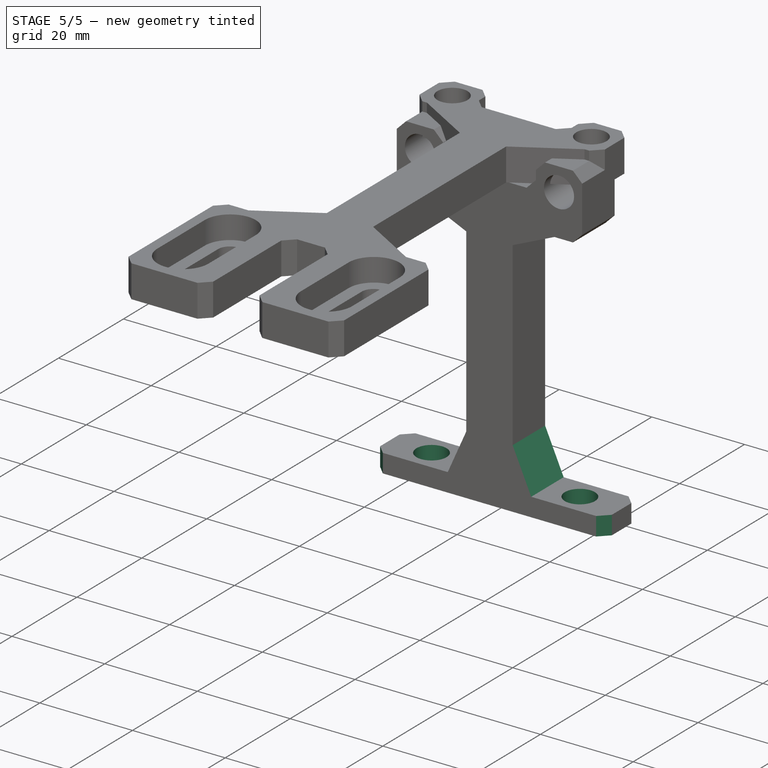
[diagram: stage 5 of 5 — iso view after this stage's code; geometry added in this stage tinted green]
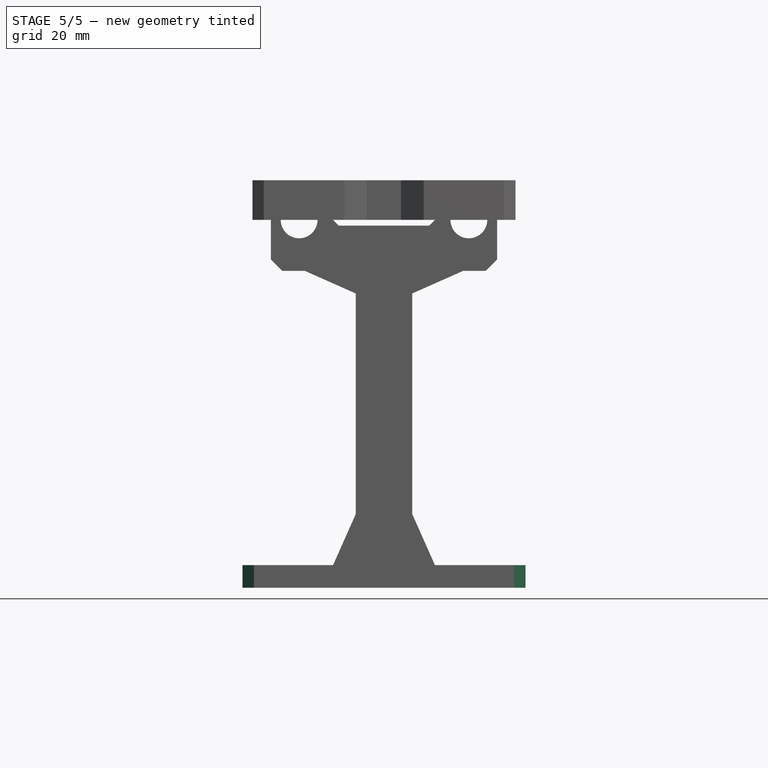
[diagram: stage 5 of 5 — front view after this stage's code; geometry added in this stage tinted green]
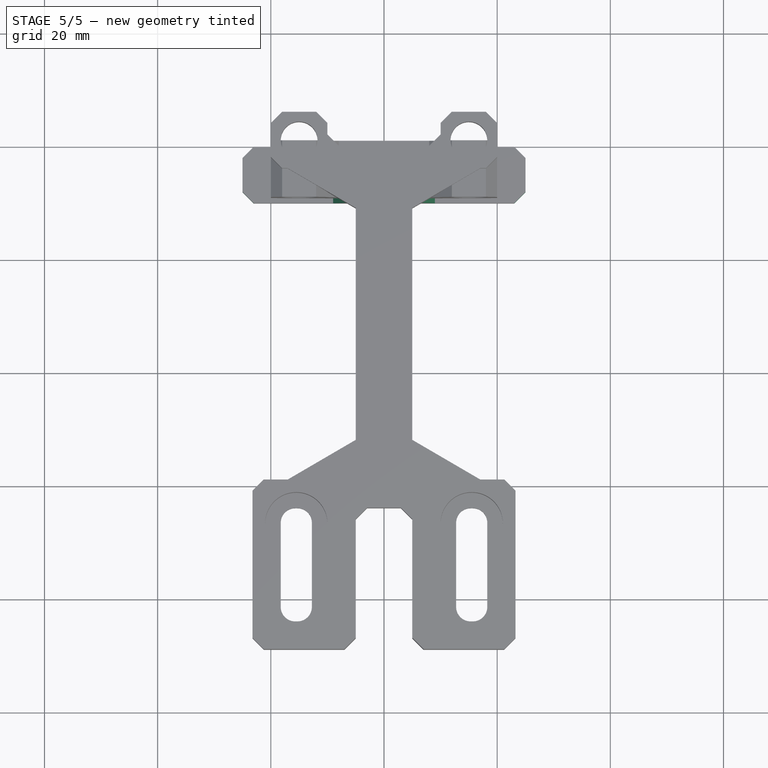
[diagram: stage 5 of 5 — top view after this stage's code; geometry added in this stage tinted green]
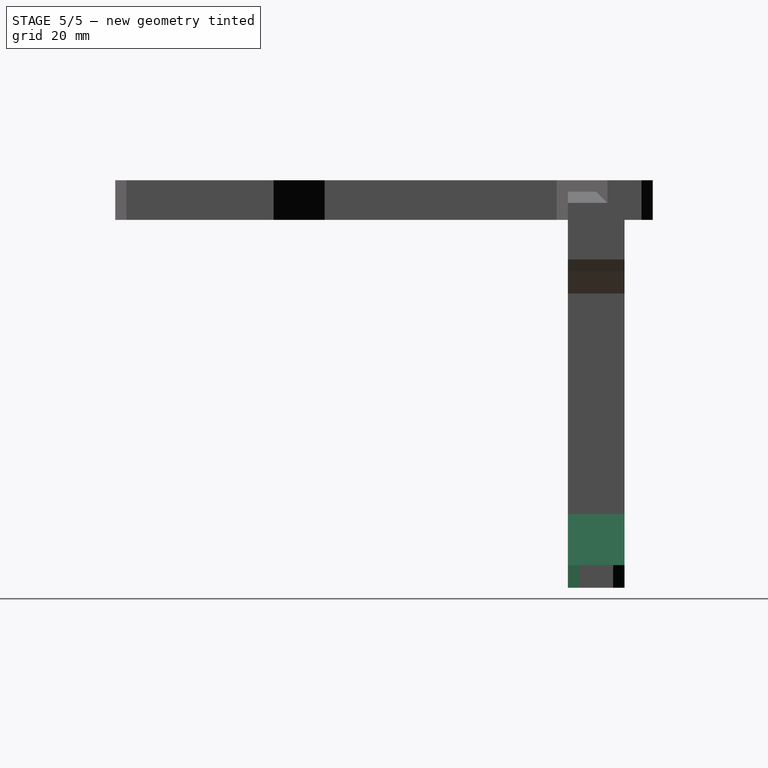
[diagram: stage 5 of 5 — right view after this stage's code; geometry added in this stage tinted green]
FEATURE [PartDesign::Chamfer] Chamfer002
  Angle = 45
  Base = -> Chamfer001 [Edge56]
  BaseFeature = -> Chamfer001
  ChamferType = 1
  FlipDirection = false
  Placement = pos=(0,0,0) rot=(1,0,0;1.5708rad)
  Refine = true
  Size = 4
  Size2 = 9
  SupportTransform = false
  Suppressed = false
  UseAllEdges = false
FEATURE [PartDesign::Chamfer] Chamfer003
  Angle = 45
  Base = -> Chamfer002 [Edge48]
  BaseFeature = -> Chamfer002
  ChamferType = 1
  FlipDirection = false
  Placement = pos=(0,0,0) rot=(1,0,0;1.5708rad)
  Refine = true
  Size = 4
  Size2 = 9
  SupportTransform = false
  Suppressed = false
  UseAllEdges = false
FEATURE [Sketcher::SketchObject] Sketch002
  ArcFitTolerance = 1e-06
  AttachmentSupport = -> [Chamfer003]
  FullyConstrained = true
  MakeInternals = false
  MapMode = 5
  Placement = pos=(0,-1.44e-14,-65) rot=(1,0,0;3.14159rad)
  sketch-geometry (5):
    g0: LineSegment [constr] StartX=0 StartY=0 StartZ=0 EndX=0 EndY=5 EndZ=0
    g1: LineSegment [constr] StartX=0 StartY=5 StartZ=0 EndX=16 EndY=5 EndZ=0
    g2: Circle CenterX=16 CenterY=5 CenterZ=0 NormalX=0 NormalY=0 NormalZ=1 AngleXU=0 Radius=3.25
    g3: LineSegment [constr] StartX=0 StartY=5 StartZ=0 EndX=-16 EndY=5 EndZ=0
    g4: Circle CenterX=-16 CenterY=5 CenterZ=0 NormalX=0 NormalY=0 NormalZ=1 AngleXU=0 Radius=3.25
  constraints (13):
    c: Distance(g0) = 5
    c: Coincident(g0,g-1)
    c: PointOnObject(g0,g-2)
    c: Distance(g1) = 16
    c: Coincident(g1,g0)
    c: Horizontal(g1)
    c: Diameter(g2) = 6.5
    c: Coincident(g2,g1)
    c: Distance(g3) = 16
    c: Coincident(g3,g0)
    c: Horizontal(g3)
    c: Diameter(g4) = 6.5
    c: Coincident(g4,g3)
FEATURE [PartDesign::Pocket] Pocket001
  BaseFeature = -> Chamfer003
  Direction = (0,0,1)
  Length = 5
  Length2 = 5
  Placement = pos=(0,0,0) rot=(1,0,0;1.5708rad)
  Profile = -> Sketch002
  ReferenceAxis = -> Sketch002 [N_Axis]
  Refine = true
  Suppressed = false
  Type = 0
FEATURE [PartDesign::Chamfer] Chamfer004
  Angle = 45
  Base = -> Pocket001 [Edge3,Edge38,Edge7,Edge48]
  BaseFeature = -> Pocket001
  ChamferType = 0
  FlipDirection = false
  Placement = pos=(0,0,0) rot=(1,0,0;1.5708rad)
  Refine = true
  Size = 2
  Size2 = 1
  SupportTransform = false
  Suppressed = false
  UseAllEdges = false
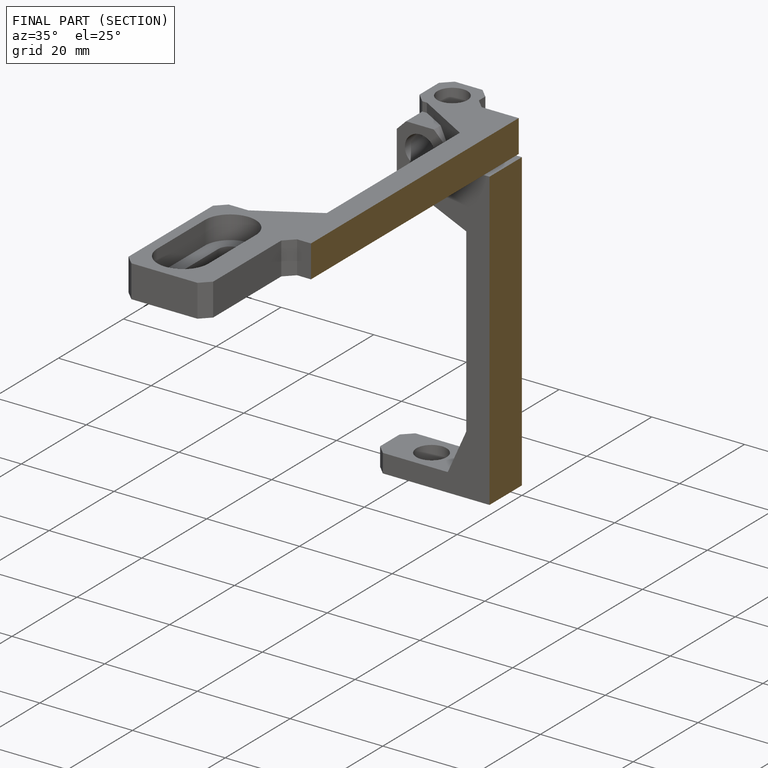
[diagram: finished part — half-section view (interior)]
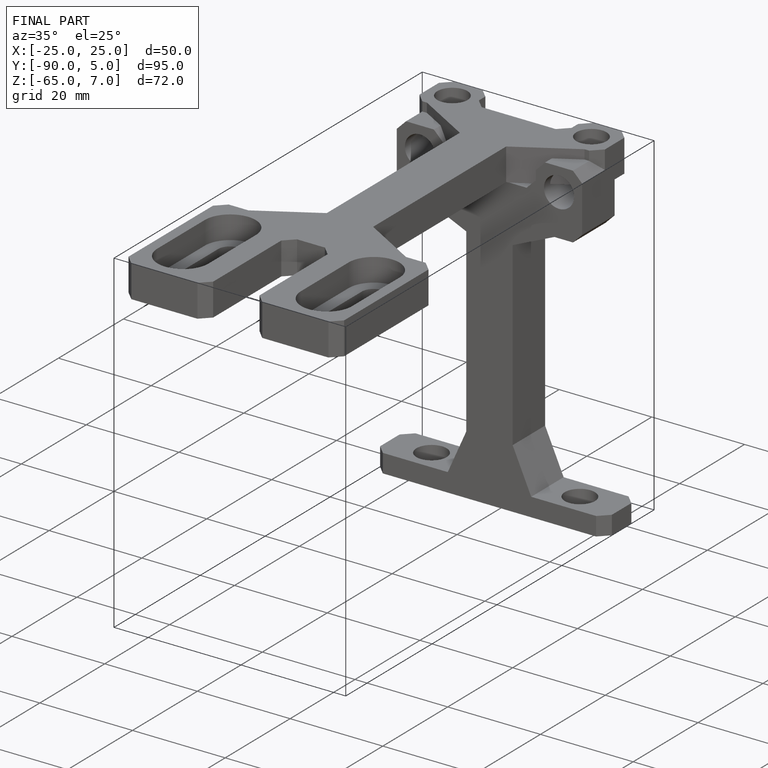
[diagram: finished part — iso view with bounding-box wireframe]
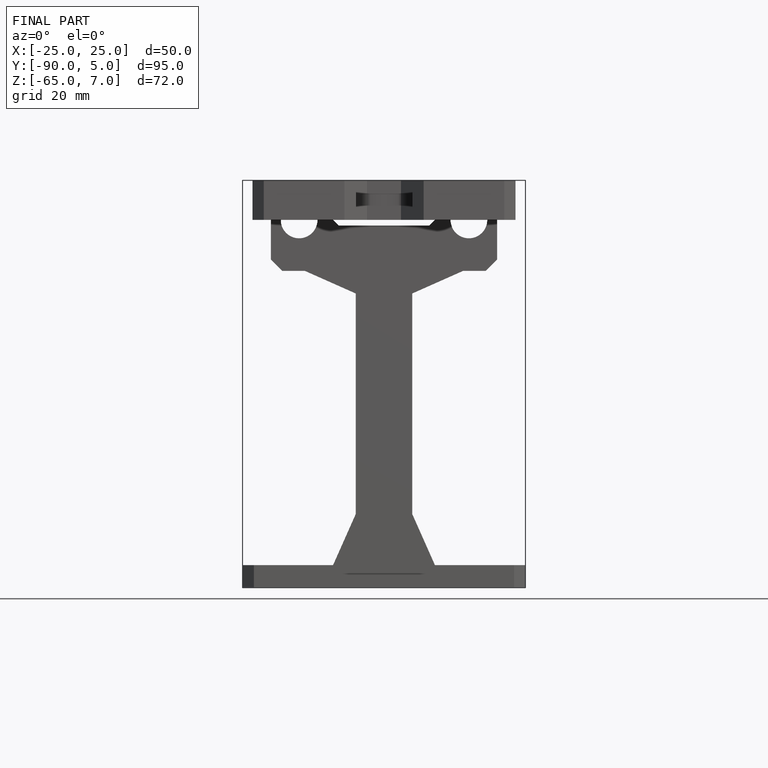
[diagram: finished part — front view with bounding-box wireframe]
